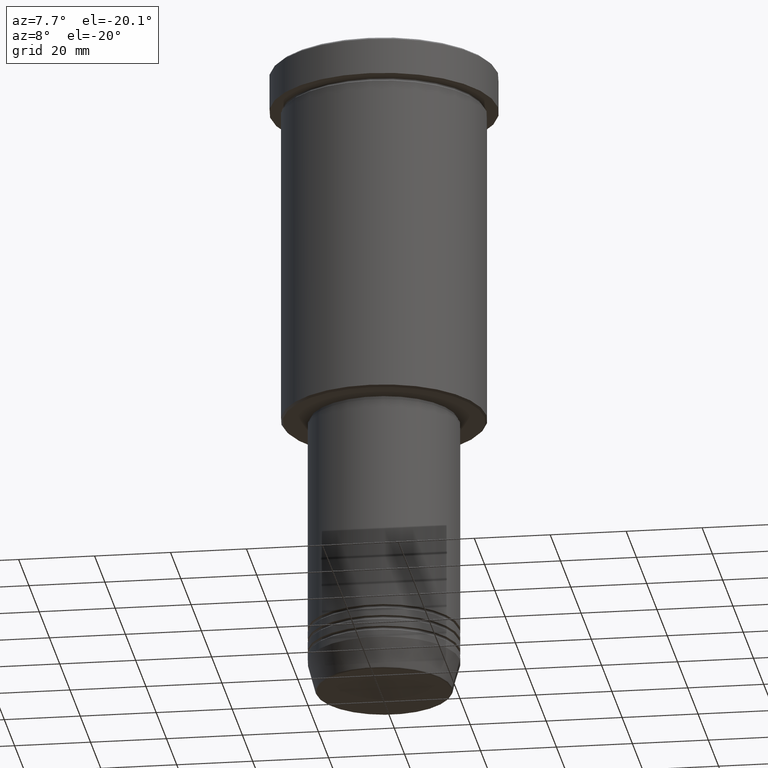
[diagram: clean part render]
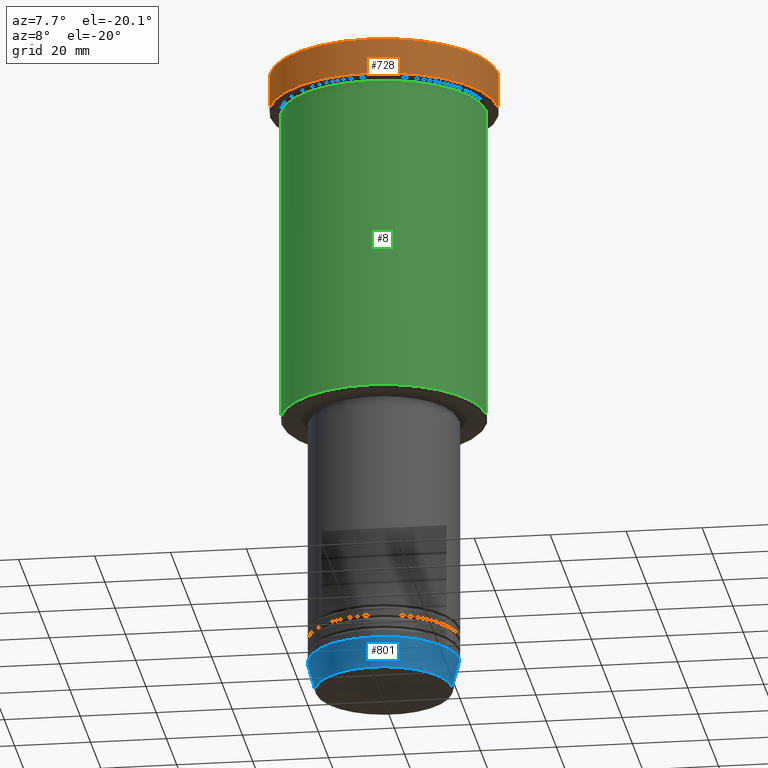
[diagram: same view with three faces highlighted in distinct colors, each labeled with its STEP entity id]
A machine part, auxiliary view with three faces highlighted in distinct colors.
Their STEP definitions:

[orange] entity #728 — the highlighted cylindrical surface (partial cylindrical patch) has radius 30 mm, axis along (-0, -0, 1).
#101 = VERTEX_POINT ( 'NONE', #320 ) ;
#135 = CARTESIAN_POINT ( 'NONE',  ( 0.000000000000000000, 0.000000000000000000, -9.999999999999992895 ) ) ;
#156 = DIRECTION ( 'NONE',  ( 1.000000000000000000, 0.000000000000000000, 0.000000000000000000 ) ) ;
#206 = CIRCLE ( 'NONE', #1019, 30.00000000000000000 ) ;
#299 = EDGE_LOOP ( 'NONE', ( #993, #736, #988, #896 ) ) ;
#319 = DIRECTION ( 'NONE',  ( 1.000000000000000000, 0.000000000000000000, 0.000000000000000000 ) ) ;
#320 = CARTESIAN_POINT ( 'NONE',  ( 30.00000000000000000, 0.000000000000000000, -9.999999999999992895 ) ) ;
#332 = DIRECTION ( 'NONE',  ( -0.000000000000000000, -0.000000000000000000, 1.000000000000000000 ) ) ;
#417 = DIRECTION ( 'NONE',  ( 1.000000000000000000, 0.000000000000000000, 0.000000000000000000 ) ) ;
#432 = DIRECTION ( 'NONE',  ( 0.000000000000000000, 0.000000000000000000, -1.000000000000000000 ) ) ;
#443 = CARTESIAN_POINT ( 'NONE',  ( 0.000000000000000000, 0.000000000000000000, -0.5000000000000350830 ) ) ;
#450 = CARTESIAN_POINT ( 'NONE',  ( -30.00000000000000000, 3.673940397442059178E-15, -0.5000000000000350830 ) ) ;
#486 = CARTESIAN_POINT ( 'NONE',  ( -30.00000000000000000, 3.673940397442059178E-15, 0.000000000000000000 ) ) ;
#587 = CIRCLE ( 'NONE', #868, 30.00000000000000000 ) ;
#596 = CARTESIAN_POINT ( 'NONE',  ( 30.00000000000000000, 0.000000000000000000, -0.5000000000000350830 ) ) ;
#627 = VECTOR ( 'NONE', #640, 1000.000000000000000 ) ;
#640 = DIRECTION ( 'NONE',  ( -0.000000000000000000, -0.000000000000000000, 1.000000000000000000 ) ) ;
#686 = CARTESIAN_POINT ( 'NONE',  ( 30.00000000000000000, 0.000000000000000000, 0.000000000000000000 ) ) ;
#695 = EDGE_CURVE ( 'NONE', #1017, #1113, #206, .T. ) ;
#728 = ADVANCED_FACE ( 'NONE', ( #966 ), #780, .T. ) ;
#736 = ORIENTED_EDGE ( 'NONE', *, *, #1008, .T. ) ;
#776 = CARTESIAN_POINT ( 'NONE',  ( -30.00000000000000000, 3.673940397442059178E-15, -9.999999999999992895 ) ) ;
#780 = CYLINDRICAL_SURFACE ( 'NONE', #1158, 30.00000000000000000 ) ;
#786 = EDGE_CURVE ( 'NONE', #921, #1113, #991, .T. ) ;
#868 = AXIS2_PLACEMENT_3D ( 'NONE', #135, #939, #319 ) ;
#893 = VECTOR ( 'NONE', #1049, 1000.000000000000000 ) ;
#896 = ORIENTED_EDGE ( 'NONE', *, *, #695, .T. ) ;
#913 = EDGE_CURVE ( 'NONE', #101, #1017, #943, .T. ) ;
#921 = VERTEX_POINT ( 'NONE', #776 ) ;
#939 = DIRECTION ( 'NONE',  ( -0.000000000000000000, -0.000000000000000000, 1.000000000000000000 ) ) ;
#943 = LINE ( 'NONE', #686, #893 ) ;
#966 = FACE_OUTER_BOUND ( 'NONE', #299, .T. ) ;
#988 = ORIENTED_EDGE ( 'NONE', *, *, #913, .T. ) ;
#991 = LINE ( 'NONE', #486, #627 ) ;
#993 = ORIENTED_EDGE ( 'NONE', *, *, #786, .F. ) ;
#1008 = EDGE_CURVE ( 'NONE', #921, #101, #587, .T. ) ;
#1017 = VERTEX_POINT ( 'NONE', #596 ) ;
#1019 = AXIS2_PLACEMENT_3D ( 'NONE', #443, #432, #417 ) ;
#1049 = DIRECTION ( 'NONE',  ( -0.000000000000000000, -0.000000000000000000, 1.000000000000000000 ) ) ;
#1113 = VERTEX_POINT ( 'NONE', #450 ) ;
#1146 = CARTESIAN_POINT ( 'NONE',  ( 0.000000000000000000, 0.000000000000000000, 0.000000000000000000 ) ) ;
#1158 = AXIS2_PLACEMENT_3D ( 'NONE', #1146, #332, #156 ) ;

[blue] entity #801 — the highlighted conical surface has half-angle 15 deg.
#14 = DIRECTION ( 'NONE',  ( -0.000000000000000000, -0.000000000000000000, 1.000000000000000000 ) ) ;
#21 = CARTESIAN_POINT ( 'NONE',  ( 20.00000000000000000, 0.000000000000000000, -163.0000000000000000 ) ) ;
#79 = DIRECTION ( 'NONE',  ( -0.000000000000000000, -0.000000000000000000, 1.000000000000000000 ) ) ;
#87 = EDGE_CURVE ( 'NONE', #211, #366, #264, .T. ) ;
#114 = CIRCLE ( 'NONE', #424, 17.95570587970607690 ) ;
#129 = ORIENTED_EDGE ( 'NONE', *, *, #87, .F. ) ;
#174 = EDGE_CURVE ( 'NONE', #1007, #366, #804, .T. ) ;
#211 = VERTEX_POINT ( 'NONE', #534 ) ;
#235 = DIRECTION ( 'NONE',  ( -0.000000000000000000, -0.000000000000000000, 1.000000000000000000 ) ) ;
#244 = VECTOR ( 'NONE', #1180, 1000.000000000000000 ) ;
#247 = AXIS2_PLACEMENT_3D ( 'NONE', #508, #235, #602 ) ;
#262 = CONICAL_SURFACE ( 'NONE', #930, 20.00000000000000000, 0.2617993877991500740 ) ;
#264 = CIRCLE ( 'NONE', #247, 20.00000000000000000 ) ;
#266 = EDGE_LOOP ( 'NONE', ( #812, #732, #624, #129 ) ) ;
#355 = DIRECTION ( 'NONE',  ( 1.000000000000000000, 0.000000000000000000, 0.000000000000000000 ) ) ;
#366 = VERTEX_POINT ( 'NONE', #21 ) ;
#424 = AXIS2_PLACEMENT_3D ( 'NONE', #788, #79, #355 ) ;
#448 = CARTESIAN_POINT ( 'NONE',  ( 20.00000000000000000, 0.000000000000000000, -163.0000000000000000 ) ) ;
#508 = CARTESIAN_POINT ( 'NONE',  ( 0.000000000000000000, 0.000000000000000000, -163.0000000000000000 ) ) ;
#534 = CARTESIAN_POINT ( 'NONE',  ( -20.00000000000000000, 2.449293598294706513E-15, -163.0000000000000000 ) ) ;
#574 = FACE_OUTER_BOUND ( 'NONE', #266, .T. ) ;
#590 = VECTOR ( 'NONE', #727, 1000.000000000000000 ) ;
#602 = DIRECTION ( 'NONE',  ( 1.000000000000000000, 0.000000000000000000, 0.000000000000000000 ) ) ;
#623 = VERTEX_POINT ( 'NONE', #707 ) ;
#624 = ORIENTED_EDGE ( 'NONE', *, *, #174, .T. ) ;
#657 = DIRECTION ( 'NONE',  ( 1.000000000000000000, 0.000000000000000000, 0.000000000000000000 ) ) ;
#707 = CARTESIAN_POINT ( 'NONE',  ( -17.95570587970607690, 2.324116685748020977E-15, -170.6294095225512706 ) ) ;
#727 = DIRECTION ( 'NONE',  ( 0.2588190451025213501, 0.000000000000000000, 0.9659258262890680902 ) ) ;
#732 = ORIENTED_EDGE ( 'NONE', *, *, #1102, .T. ) ;
#788 = CARTESIAN_POINT ( 'NONE',  ( 0.000000000000000000, 0.000000000000000000, -170.6294095225512706 ) ) ;
#801 = ADVANCED_FACE ( 'NONE', ( #574 ), #262, .T. ) ;
#804 = LINE ( 'NONE', #448, #590 ) ;
#810 = LINE ( 'NONE', #1111, #244 ) ;
#812 = ORIENTED_EDGE ( 'NONE', *, *, #845, .F. ) ;
#818 = CARTESIAN_POINT ( 'NONE',  ( 0.000000000000000000, 0.000000000000000000, -163.0000000000000000 ) ) ;
#845 = EDGE_CURVE ( 'NONE', #623, #211, #810, .T. ) ;
#930 = AXIS2_PLACEMENT_3D ( 'NONE', #818, #14, #657 ) ;
#1007 = VERTEX_POINT ( 'NONE', #1125 ) ;
#1102 = EDGE_CURVE ( 'NONE', #623, #1007, #114, .T. ) ;
#1111 = CARTESIAN_POINT ( 'NONE',  ( -20.00000000000000000, 2.449293598294706513E-15, -163.0000000000000000 ) ) ;
#1125 = CARTESIAN_POINT ( 'NONE',  ( 17.95570587970607690, 0.000000000000000000, -170.6294095225512706 ) ) ;
#1180 = DIRECTION ( 'NONE',  ( -0.2588190451025213501, 3.169619151431772337E-17, 0.9659258262890680902 ) ) ;

[green] entity #8 — the highlighted cylindrical surface (partial cylindrical patch) has radius 27 mm, axis along (-0, -0, 1).
#8 = ADVANCED_FACE ( 'NONE', ( #526 ), #887, .T. ) ;
#19 = CIRCLE ( 'NONE', #772, 27.00000000000000355 ) ;
#44 = CARTESIAN_POINT ( 'NONE',  ( -27.00000000000000355, 3.306546357697854128E-15, 0.000000000000000000 ) ) ;
#97 = EDGE_CURVE ( 'NONE', #816, #832, #858, .T. ) ;
#132 = VECTOR ( 'NONE', #414, 1000.000000000000000 ) ;
#144 = DIRECTION ( 'NONE',  ( -0.000000000000000000, -0.000000000000000000, 1.000000000000000000 ) ) ;
#203 = ORIENTED_EDGE ( 'NONE', *, *, #439, .T. ) ;
#267 = CIRCLE ( 'NONE', #551, 27.00000000000000355 ) ;
#268 = LINE ( 'NONE', #870, #401 ) ;
#309 = ORIENTED_EDGE ( 'NONE', *, *, #506, .F. ) ;
#311 = VERTEX_POINT ( 'NONE', #1115 ) ;
#351 = VERTEX_POINT ( 'NONE', #656 ) ;
#401 = VECTOR ( 'NONE', #533, 1000.000000000000000 ) ;
#414 = DIRECTION ( 'NONE',  ( -0.000000000000000000, -0.000000000000000000, 1.000000000000000000 ) ) ;
#418 = DIRECTION ( 'NONE',  ( 1.000000000000000000, 0.000000000000000000, 0.000000000000000000 ) ) ;
#439 = EDGE_CURVE ( 'NONE', #816, #311, #267, .T. ) ;
#462 = ORIENTED_EDGE ( 'NONE', *, *, #97, .F. ) ;
#491 = EDGE_LOOP ( 'NONE', ( #462, #203, #1142, #309 ) ) ;
#506 = EDGE_CURVE ( 'NONE', #832, #351, #19, .T. ) ;
#524 = DIRECTION ( 'NONE',  ( -1.000000000000000000, 0.000000000000000000, 0.000000000000000000 ) ) ;
#526 = FACE_OUTER_BOUND ( 'NONE', #491, .T. ) ;
#533 = DIRECTION ( 'NONE',  ( -0.000000000000000000, -0.000000000000000000, 1.000000000000000000 ) ) ;
#551 = AXIS2_PLACEMENT_3D ( 'NONE', #763, #144, #524 ) ;
#605 = DIRECTION ( 'NONE',  ( -0.000000000000000000, -0.000000000000000000, 1.000000000000000000 ) ) ;
#656 = CARTESIAN_POINT ( 'NONE',  ( 27.00000000000000355, 0.000000000000000000, -10.99999999999999289 ) ) ;
#685 = AXIS2_PLACEMENT_3D ( 'NONE', #1156, #970, #872 ) ;
#746 = CARTESIAN_POINT ( 'NONE',  ( -27.00000000000000355, 3.306546357697854128E-15, -10.99999999999999289 ) ) ;
#763 = CARTESIAN_POINT ( 'NONE',  ( 0.000000000000000000, 0.000000000000000000, -95.49999999999995737 ) ) ;
#772 = AXIS2_PLACEMENT_3D ( 'NONE', #1060, #605, #418 ) ;
#816 = VERTEX_POINT ( 'NONE', #920 ) ;
#832 = VERTEX_POINT ( 'NONE', #746 ) ;
#858 = LINE ( 'NONE', #44, #132 ) ;
#870 = CARTESIAN_POINT ( 'NONE',  ( 27.00000000000000355, 0.000000000000000000, 0.000000000000000000 ) ) ;
#872 = DIRECTION ( 'NONE',  ( 1.000000000000000000, 0.000000000000000000, 0.000000000000000000 ) ) ;
#887 = CYLINDRICAL_SURFACE ( 'NONE', #685, 27.00000000000000355 ) ;
#920 = CARTESIAN_POINT ( 'NONE',  ( -27.00000000000000355, 3.306546357697854128E-15, -95.49999999999995737 ) ) ;
#970 = DIRECTION ( 'NONE',  ( -0.000000000000000000, -0.000000000000000000, 1.000000000000000000 ) ) ;
#1060 = CARTESIAN_POINT ( 'NONE',  ( 0.000000000000000000, 0.000000000000000000, -10.99999999999999289 ) ) ;
#1115 = CARTESIAN_POINT ( 'NONE',  ( 27.00000000000000355, 0.000000000000000000, -95.49999999999995737 ) ) ;
#1142 = ORIENTED_EDGE ( 'NONE', *, *, #1154, .T. ) ;
#1154 = EDGE_CURVE ( 'NONE', #311, #351, #268, .T. ) ;
#1156 = CARTESIAN_POINT ( 'NONE',  ( 0.000000000000000000, 0.000000000000000000, 0.000000000000000000 ) ) ;